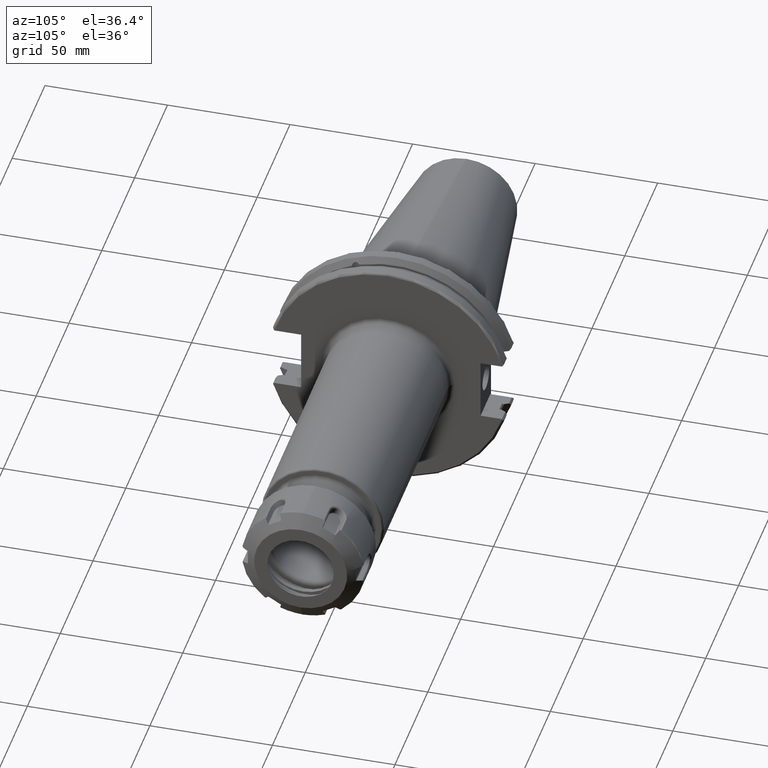
[diagram: clean part render]
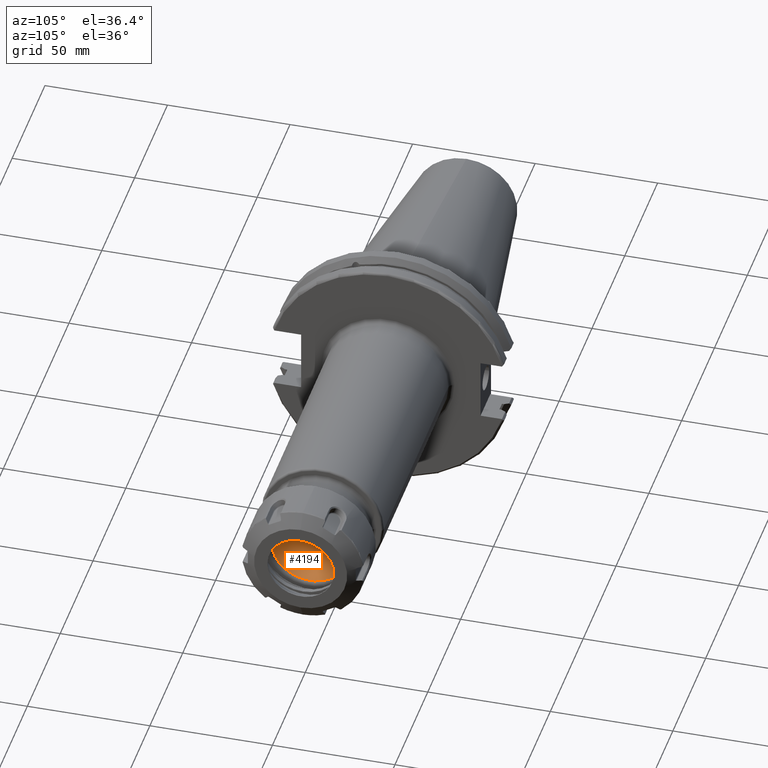
[diagram: same view with one face highlighted and labeled with its STEP entity id]
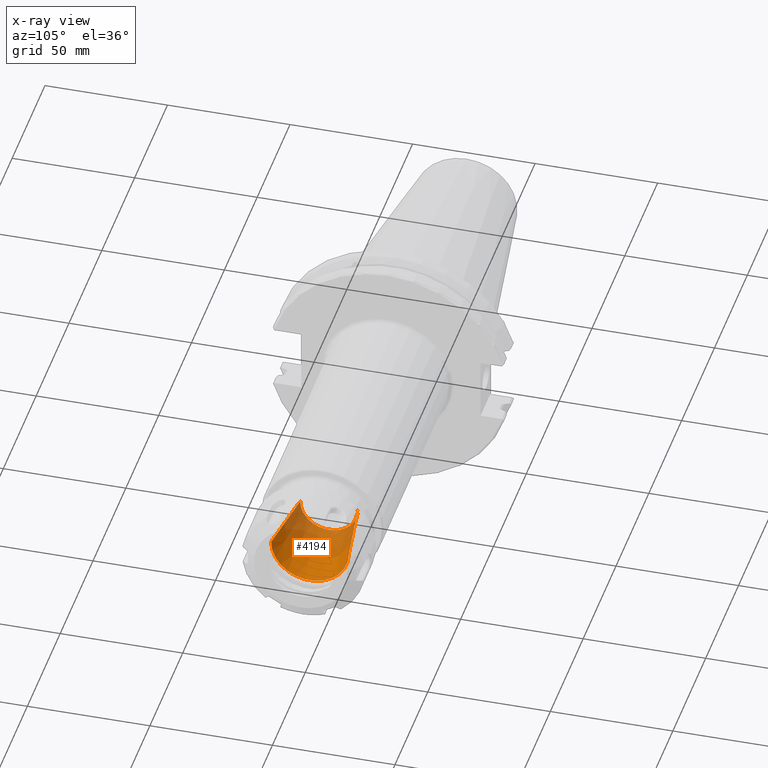
[diagram: x-ray of the same camera — body ghosted, the highlighted face saturated]
A machine part, auxiliary view. The second image highlights one B-rep face of the part: STEP entity #4194.
The next image is the same camera in x-ray: the body ghosted, the highlighted face saturated — about 43% of this face is hidden behind the body in this view.
In plain terms, the highlighted conical surface has half-angle 8 deg.
Its self-contained STEP definition (entity closure, byte-faithful):
#251=CARTESIAN_POINT('',(4.299733256362E0,0.E0,0.E0));
#252=DIRECTION('',(-1.E0,0.E0,0.E0));
#253=DIRECTION('',(0.E0,1.E0,0.E0));
#254=AXIS2_PLACEMENT_3D('',#251,#252,#253);
#1795=CARTESIAN_POINT('',(5.442213443161E0,0.E0,0.E0));
#1796=DIRECTION('',(-1.E0,0.E0,0.E0));
#1797=DIRECTION('',(0.E0,1.E0,0.E0));
#1798=AXIS2_PLACEMENT_3D('',#1795,#1796,#1797);
#1800=DIRECTION('',(-9.902680687735E-1,1.391731007327E-1,-2.734705399824E-9));
#1801=VECTOR('',#1800,1.153707993030E0);
#1802=CARTESIAN_POINT('',(5.442213442549E0,-6.235651187301E-1,
3.155051421659E-9));
#1803=LINE('',#1802,#1801);
#1804=DIRECTION('',(-9.902680687735E-1,-1.391731007327E-1,2.734705476378E-9));
#1805=VECTOR('',#1804,1.153707993030E0);
#1806=CARTESIAN_POINT('',(5.442213442549E0,6.235651187301E-1,
-3.155051509980E-9));
#1807=LINE('',#1806,#1805);
#1974=CARTESIAN_POINT('',(4.299733256362E0,4.63E-1,0.E0));
#1975=CARTESIAN_POINT('',(4.299733256362E0,-4.63E-1,0.E0));
#1976=VERTEX_POINT('',#1974);
#1977=VERTEX_POINT('',#1975);
#1986=CARTESIAN_POINT('',(5.442213443161E0,-6.235651190837E-1,0.E0));
#1987=CARTESIAN_POINT('',(5.442213443161E0,6.235651190837E-1,0.E0));
#1988=VERTEX_POINT('',#1986);
#1989=VERTEX_POINT('',#1987);
#4183=CARTESIAN_POINT('',(4.870973349761E0,0.E0,0.E0));
#4184=DIRECTION('',(1.E0,0.E0,0.E0));
#4185=DIRECTION('',(0.E0,-1.E0,0.E0));
#4186=AXIS2_PLACEMENT_3D('',#4183,#4184,#4185);
#4187=CONICAL_SURFACE('',#4186,5.432825595418E-1,8.E0);
#4188=ORIENTED_EDGE('',*,*,#4177,.T.);
#4189=ORIENTED_EDGE('',*,*,#2535,.T.);
#4190=ORIENTED_EDGE('',*,*,#2505,.F.);
#4191=ORIENTED_EDGE('',*,*,#2532,.F.);
#4192=EDGE_LOOP('',(#4188,#4189,#4190,#4191));
#4193=FACE_OUTER_BOUND('',#4192,.F.);
#4194=ADVANCED_FACE('',(#4193),#4187,.F.);
#255=CIRCLE('',#254,4.63E-1);
#1799=CIRCLE('',#1798,6.235651190837E-1);
#2505=EDGE_CURVE('',#1976,#1977,#255,.T.);
#2532=EDGE_CURVE('',#1989,#1976,#1807,.T.);
#2535=EDGE_CURVE('',#1988,#1977,#1803,.T.);
#4177=EDGE_CURVE('',#1989,#1988,#1799,.T.);